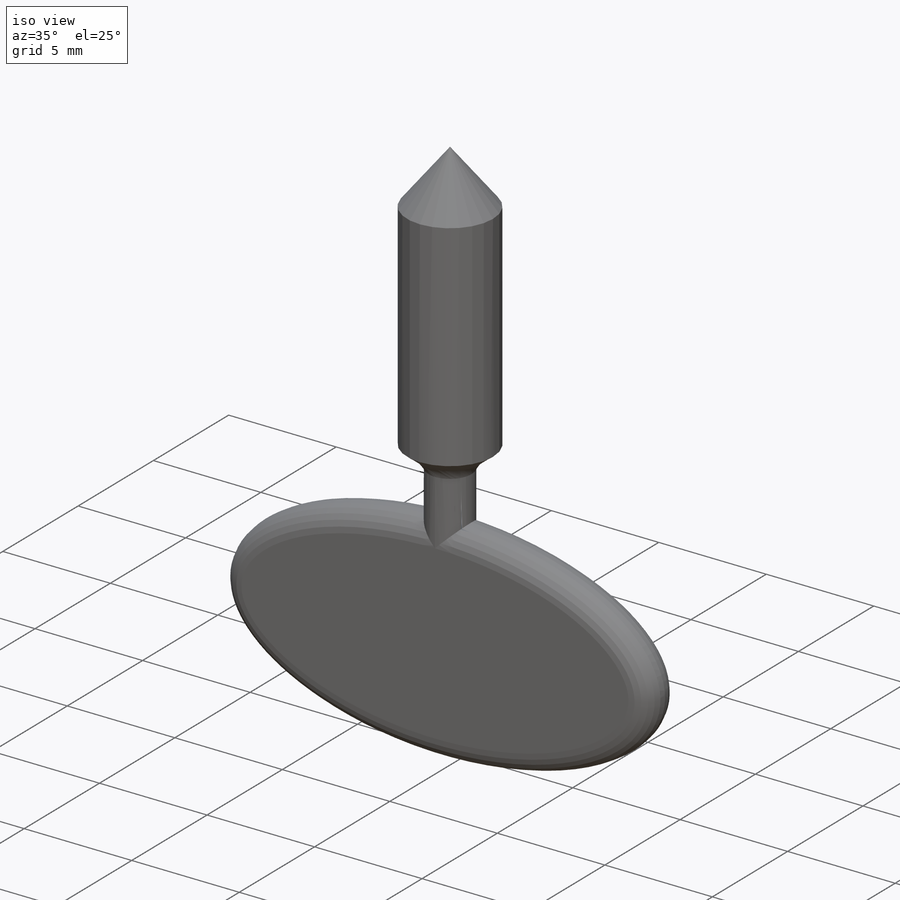
[diagram: iso view]
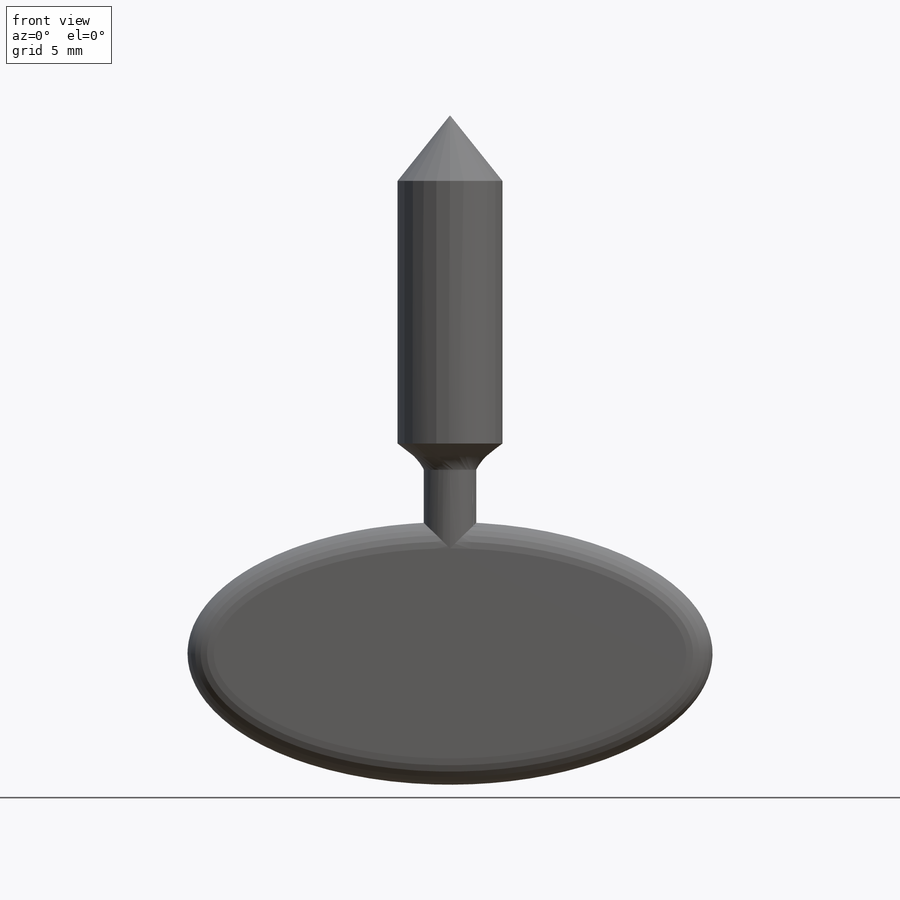
[diagram: front view]
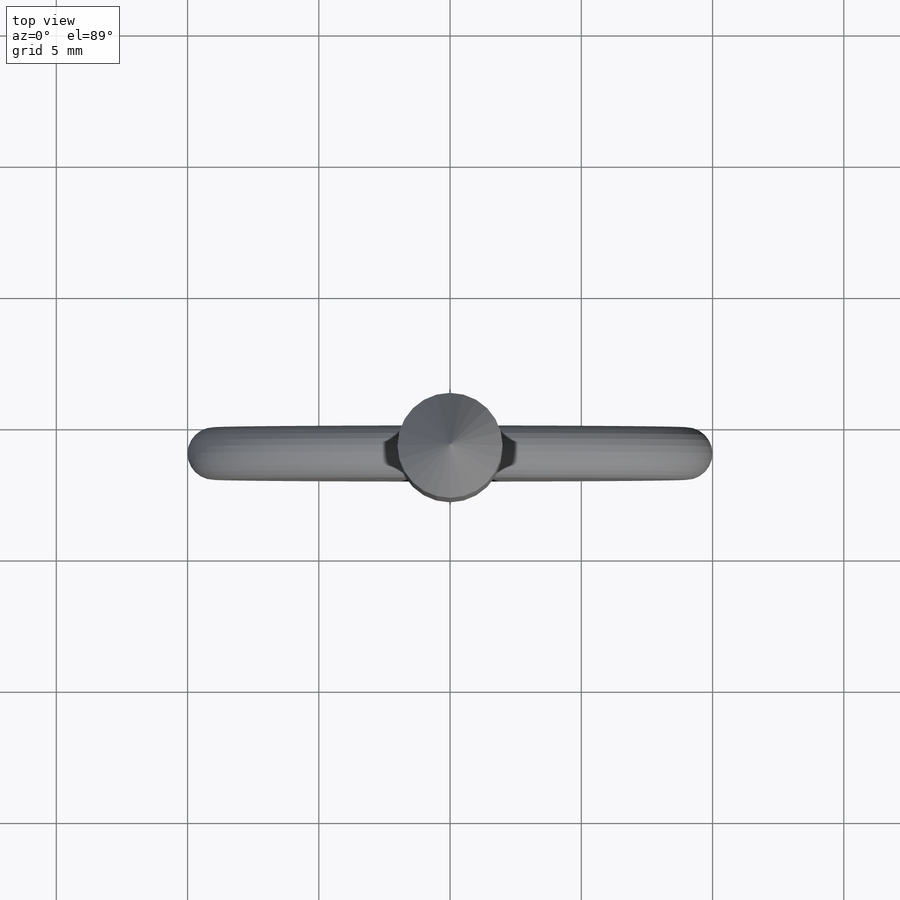
[diagram: top view]
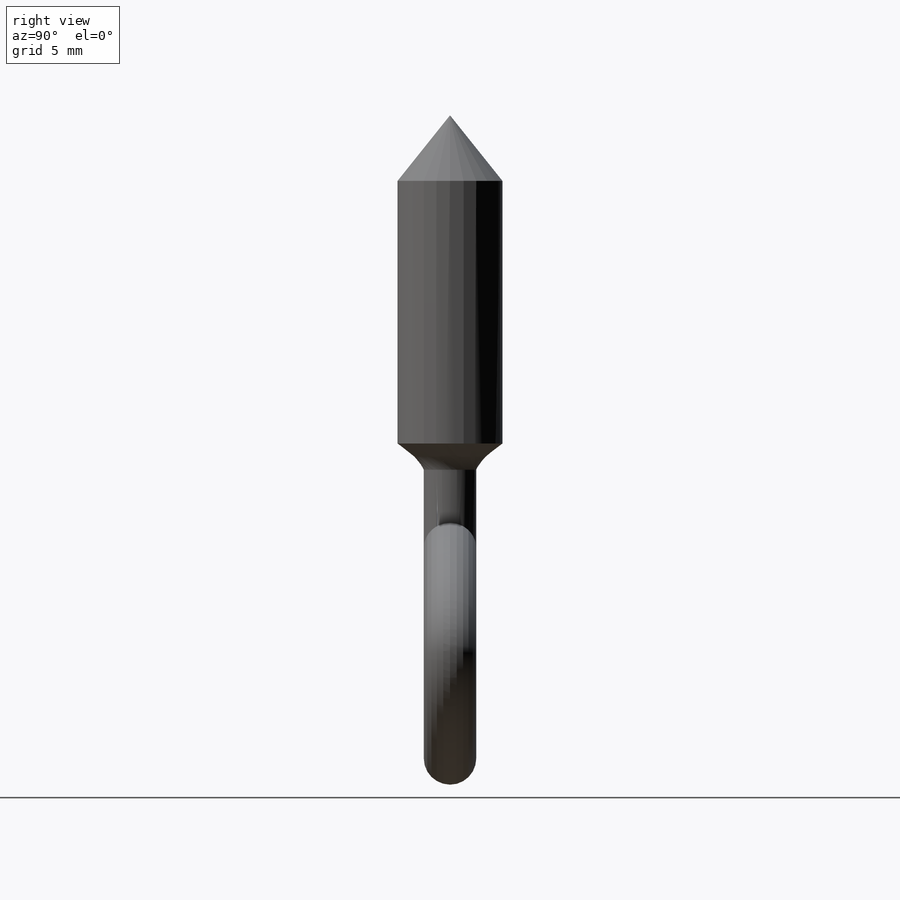
[diagram: right view]
SOLIDWORKS PART (.sldprt)
format: sldprt  version: not decoded by parser v0  size: 260,096 bytes
history: native  units: mm
features: plane x6, sketch x5, extrude x3, material x1, fillet x1, thread x1, revolve x1 (+9 scaffold rows collapsed)
feature tree (27):
  scaffold x9  (default folders/planes/origin — collapsed)
  material  "Materiál <není určen>"
  plane  "Přední rovina"
  plane  "Horní rovina"
  plane  "Pravá rovina"
  sketch  "Skica1"  dims[D1=10.0mm D2=5.0mm]
  extrude  "Přidat vysunutím1"  Depth=2mm
  fillet  "Zaoblit1"  Radius=1mm
  plane  "Rovina1"  Offset=5mm
  sketch  "Skica2"  dims[D1=2.0mm]
  extrude  "Přidat vysunutím2"  Depth=2mm
  plane  "Rovina2"  Offset=3mm
  sketch  "Skica3"  dims[D1=4.0mm]
  sketch  "Skica6"
  extrude  "Přidat vysunutím3"  [1 undecoded]
  thread  "Kosmetický závit1"  Diameter=3.22mm  [1 undecoded]
  plane  "Rovina3"  Offset=1mm
  sketch  "Skica7"  dims[D1=2.5mm]
  revolve  "Rotovat1"  Angle=360deg
decode coverage: 9 of 11 modeling features carry decoded parameters
note: 2 parameter values undecoded
note: suppression state not decoded; provenance and decode notes live in map.json
